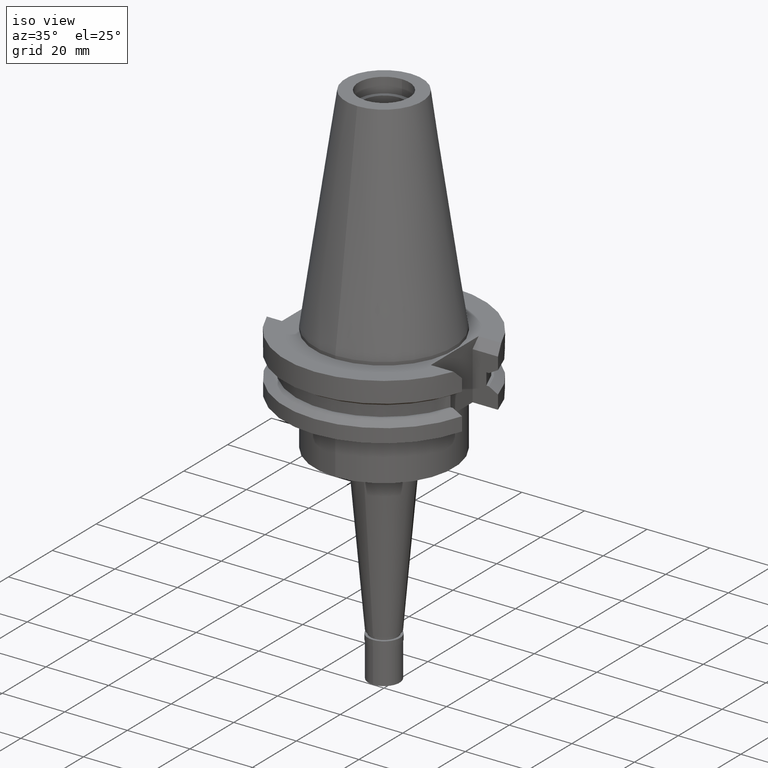
[diagram: clean part render]
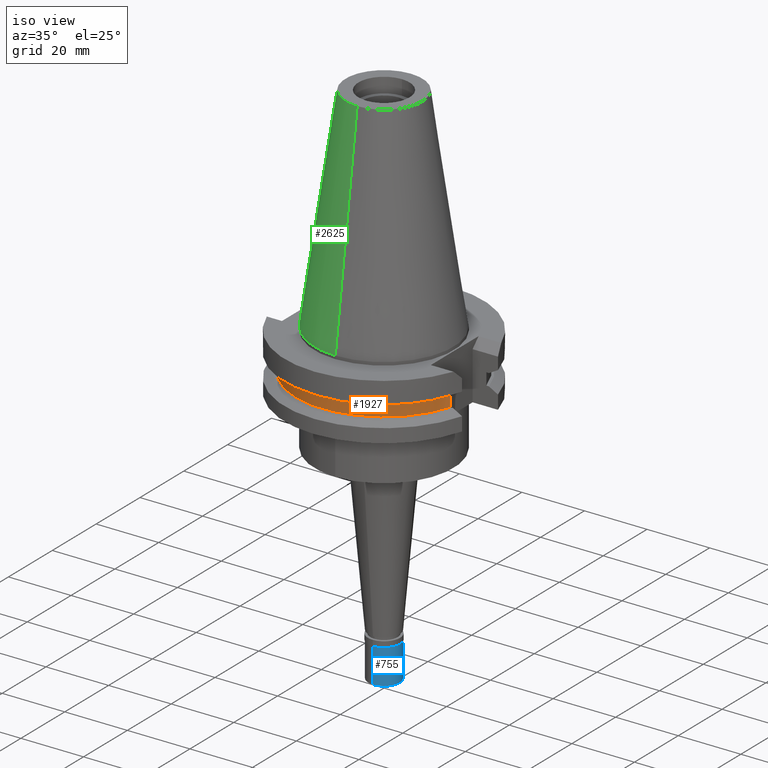
[diagram: same view with three faces highlighted in distinct colors, each labeled with its STEP entity id]
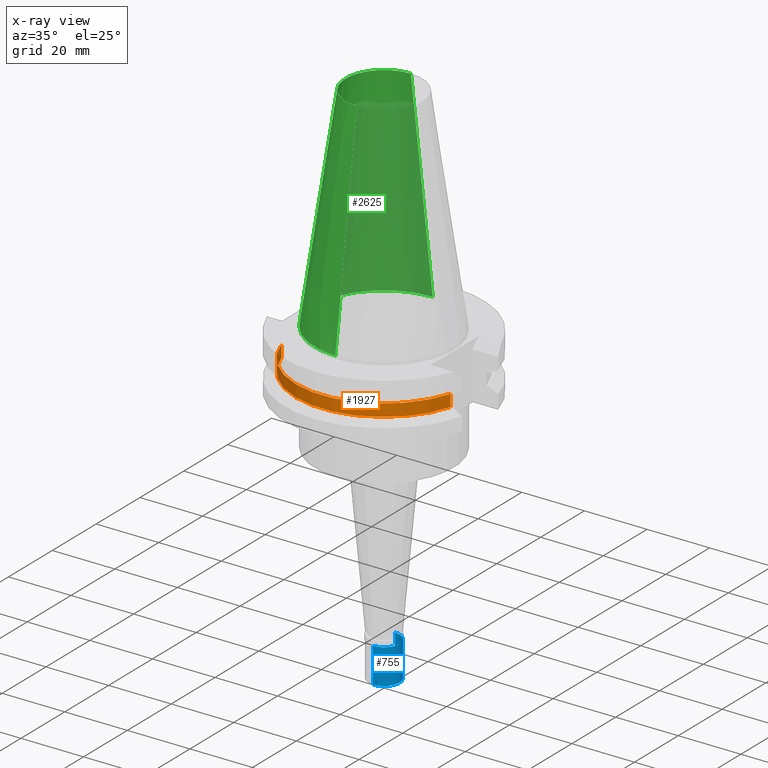
[diagram: x-ray of the same camera — body ghosted, the three highlighted faces saturated]
A machine part, iso view with three faces highlighted in distinct colors.
The next image is the same camera in x-ray (body ghosted, the three faces saturated) — at least one of them is partly hidden behind the body in this view.
Their STEP definitions:

[orange] entity #1927 — the highlighted cylindrical surface (partial cylindrical patch) has radius 28.18 mm, axis along (0, 0, -1).
#37 = CARTESIAN_POINT ( 'NONE',  ( 0.0000000000000000000, 2.162205772404999825E-14, -13.04749999999999943 ) ) ;
#134 = DIRECTION ( 'NONE',  ( 0.0000000000000000000, 0.0000000000000000000, -1.000000000000000000 ) ) ;
#163 = VECTOR ( 'NONE', #922, 1000.000000000000000 ) ;
#220 = CARTESIAN_POINT ( 'NONE',  ( -26.96361066326000255, -8.189999999999999503, -13.04749999999999943 ) ) ;
#222 = CARTESIAN_POINT ( 'NONE',  ( 0.0000000000000000000, 2.162205772404999825E-14, 76.55750000000000455 ) ) ;
#351 = CARTESIAN_POINT ( 'NONE',  ( 0.0000000000000000000, 2.162205772404999825E-14, -9.207499999999999574 ) ) ;
#378 = CIRCLE ( 'NONE', #633, 28.17999999999999616 ) ;
#452 = DIRECTION ( 'NONE',  ( 0.0000000000000000000, -1.000000000000000000, 0.0000000000000000000 ) ) ;
#462 = CARTESIAN_POINT ( 'NONE',  ( 26.96361066326000255, -8.189999999999999503, -9.207499999999999574 ) ) ;
#464 = VERTEX_POINT ( 'NONE', #220 ) ;
#519 = VERTEX_POINT ( 'NONE', #702 ) ;
#575 = DIRECTION ( 'NONE',  ( 0.0000000000000000000, 0.0000000000000000000, 1.000000000000000000 ) ) ;
#616 = EDGE_LOOP ( 'NONE', ( #3012, #1088, #2443, #2519 ) ) ;
#633 = AXIS2_PLACEMENT_3D ( 'NONE', #37, #575, #1057 ) ;
#702 = CARTESIAN_POINT ( 'NONE',  ( -26.96361066326000255, -8.189999999999999503, -9.207499999999999574 ) ) ;
#766 = CARTESIAN_POINT ( 'NONE',  ( 26.96361066326000255, -8.189999999999999503, -13.04749999999999943 ) ) ;
#768 = EDGE_CURVE ( 'NONE', #1223, #519, #2335, .T. ) ;
#922 = DIRECTION ( 'NONE',  ( 0.0000000000000000000, 0.0000000000000000000, -1.000000000000000000 ) ) ;
#955 = EDGE_CURVE ( 'NONE', #1223, #1424, #2203, .T. ) ;
#1057 = DIRECTION ( 'NONE',  ( -0.9568350128907829877, -0.2906316536550950236, 0.0000000000000000000 ) ) ;
#1088 = ORIENTED_EDGE ( 'NONE', *, *, #768, .T. ) ;
#1223 = VERTEX_POINT ( 'NONE', #1761 ) ;
#1424 = VERTEX_POINT ( 'NONE', #766 ) ;
#1565 = DIRECTION ( 'NONE',  ( 0.0000000000000000000, -1.000000000000000000, 0.0000000000000000000 ) ) ;
#1627 = EDGE_CURVE ( 'NONE', #464, #1424, #378, .T. ) ;
#1660 = DIRECTION ( 'NONE',  ( 0.0000000000000000000, 0.0000000000000000000, -1.000000000000000000 ) ) ;
#1677 = FACE_OUTER_BOUND ( 'NONE', #616, .T. ) ;
#1761 = CARTESIAN_POINT ( 'NONE',  ( 26.96361066326000255, -8.189999999999999503, -9.207499999999999574 ) ) ;
#1807 = EDGE_CURVE ( 'NONE', #464, #519, #2863, .T. ) ;
#1927 = ADVANCED_FACE ( 'NONE', ( #1677 ), #2440, .T. ) ;
#2121 = VECTOR ( 'NONE', #2154, 1000.000000000000000 ) ;
#2154 = DIRECTION ( 'NONE',  ( 0.0000000000000000000, 0.0000000000000000000, 1.000000000000000000 ) ) ;
#2203 = LINE ( 'NONE', #462, #163 ) ;
#2232 = AXIS2_PLACEMENT_3D ( 'NONE', #222, #1660, #452 ) ;
#2335 = CIRCLE ( 'NONE', #2805, 28.17999999999999972 ) ;
#2377 = CARTESIAN_POINT ( 'NONE',  ( -26.96361066326000255, -8.189999999999999503, -13.04749999999999943 ) ) ;
#2440 = CYLINDRICAL_SURFACE ( 'NONE', #2232, 28.17999999999999972 ) ;
#2443 = ORIENTED_EDGE ( 'NONE', *, *, #1807, .F. ) ;
#2519 = ORIENTED_EDGE ( 'NONE', *, *, #1627, .T. ) ;
#2805 = AXIS2_PLACEMENT_3D ( 'NONE', #351, #134, #1565 ) ;
#2863 = LINE ( 'NONE', #2377, #2121 ) ;
#3012 = ORIENTED_EDGE ( 'NONE', *, *, #955, .F. ) ;

[blue] entity #755 — the highlighted cylindrical surface (edge-blend (fillet) strip) has radius 5 mm, axis along (0, 0, 1).
#23 = DIRECTION ( 'NONE',  ( 0.0000000000000000000, 0.0000000000000000000, -1.000000000000000000 ) ) ;
#48 = AXIS2_PLACEMENT_3D ( 'NONE', #1637, #366, #1870 ) ;
#138 = DIRECTION ( 'NONE',  ( 0.0000000000000000000, 0.0000000000000000000, -1.000000000000000000 ) ) ;
#151 = AXIS2_PLACEMENT_3D ( 'NONE', #2985, #23, #1736 ) ;
#287 = EDGE_CURVE ( 'NONE', #1918, #1192, #2060, .T. ) ;
#301 = VERTEX_POINT ( 'NONE', #412 ) ;
#364 = CARTESIAN_POINT ( 'NONE',  ( 0.0000000000000000000, 0.0000000000000000000, -13.65000000000000036 ) ) ;
#366 = DIRECTION ( 'NONE',  ( 0.0000000000000000000, 0.0000000000000000000, 1.000000000000000000 ) ) ;
#369 = ORIENTED_EDGE ( 'NONE', *, *, #1515, .T. ) ;
#412 = CARTESIAN_POINT ( 'NONE',  ( 0.0000000000000000000, -5.000000000000000000, -1.800000000000000044 ) ) ;
#605 = CARTESIAN_POINT ( 'NONE',  ( 0.0000000000000000000, 5.000000000000000000, -1.800000000000000044 ) ) ;
#651 = DIRECTION ( 'NONE',  ( 0.0000000000000000000, 0.0000000000000000000, -1.000000000000000000 ) ) ;
#688 = CARTESIAN_POINT ( 'NONE',  ( 0.0000000000000000000, -5.000000000000000000, -13.00000000000000000 ) ) ;
#701 = VERTEX_POINT ( 'NONE', #889 ) ;
#743 = ORIENTED_EDGE ( 'NONE', *, *, #2339, .F. ) ;
#755 = ADVANCED_FACE ( 'NONE', ( #2812 ), #1387, .T. ) ;
#779 = AXIS2_PLACEMENT_3D ( 'NONE', #364, #2570, #2841 ) ;
#889 = CARTESIAN_POINT ( 'NONE',  ( 0.0000000000000000000, 5.000000000000000000, -1.800000000000000044 ) ) ;
#1191 = CARTESIAN_POINT ( 'NONE',  ( 0.0000000000000000000, -5.000000000000000000, -1.800000000000000044 ) ) ;
#1192 = VERTEX_POINT ( 'NONE', #1329 ) ;
#1296 = VECTOR ( 'NONE', #138, 1000.000000000000000 ) ;
#1329 = CARTESIAN_POINT ( 'NONE',  ( 0.0000000000000000000, 5.000000000000000000, -13.00000000000000000 ) ) ;
#1387 = CYLINDRICAL_SURFACE ( 'NONE', #779, 5.000000000000000000 ) ;
#1515 = EDGE_CURVE ( 'NONE', #701, #301, #2950, .T. ) ;
#1545 = ORIENTED_EDGE ( 'NONE', *, *, #3051, .T. ) ;
#1585 = EDGE_LOOP ( 'NONE', ( #369, #1545, #2576, #743 ) ) ;
#1622 = LINE ( 'NONE', #1191, #1744 ) ;
#1637 = CARTESIAN_POINT ( 'NONE',  ( 0.0000000000000000000, 0.0000000000000000000, -13.00000000000000000 ) ) ;
#1736 = DIRECTION ( 'NONE',  ( 0.0000000000000000000, 1.000000000000000000, 0.0000000000000000000 ) ) ;
#1744 = VECTOR ( 'NONE', #651, 1000.000000000000000 ) ;
#1870 = DIRECTION ( 'NONE',  ( 0.0000000000000000000, -1.000000000000000000, 0.0000000000000000000 ) ) ;
#1918 = VERTEX_POINT ( 'NONE', #688 ) ;
#2060 = CIRCLE ( 'NONE', #48, 5.000000000000000000 ) ;
#2339 = EDGE_CURVE ( 'NONE', #701, #1192, #2610, .T. ) ;
#2570 = DIRECTION ( 'NONE',  ( 0.0000000000000000000, 0.0000000000000000000, 1.000000000000000000 ) ) ;
#2576 = ORIENTED_EDGE ( 'NONE', *, *, #287, .T. ) ;
#2610 = LINE ( 'NONE', #605, #1296 ) ;
#2812 = FACE_OUTER_BOUND ( 'NONE', #1585, .T. ) ;
#2841 = DIRECTION ( 'NONE',  ( 0.0000000000000000000, 1.000000000000000000, 0.0000000000000000000 ) ) ;
#2950 = CIRCLE ( 'NONE', #151, 5.000000000000000000 ) ;
#2985 = CARTESIAN_POINT ( 'NONE',  ( 0.0000000000000000000, 0.0000000000000000000, -1.800000000000000044 ) ) ;
#3051 = EDGE_CURVE ( 'NONE', #301, #1918, #1622, .T. ) ;

[green] entity #2625 — the highlighted conical surface has half-angle 8.297 deg.
#35 = ORIENTED_EDGE ( 'NONE', *, *, #2422, .F. ) ;
#70 = DIRECTION ( 'NONE',  ( 0.0000000000000000000, -1.000000000000000000, 0.0000000000000000000 ) ) ;
#120 = CIRCLE ( 'NONE', #177, 12.27186888070000137 ) ;
#177 = AXIS2_PLACEMENT_3D ( 'NONE', #3139, #655, #1426 ) ;
#187 = VERTEX_POINT ( 'NONE', #2322 ) ;
#246 = EDGE_CURVE ( 'NONE', #2579, #3035, #2855, .T. ) ;
#358 = ORIENTED_EDGE ( 'NONE', *, *, #1137, .T. ) ;
#373 = CARTESIAN_POINT ( 'NONE',  ( 0.0000000000000000000, 12.27186888070000137, 68.25000000000000000 ) ) ;
#432 = CARTESIAN_POINT ( 'NONE',  ( 0.0000000000000000000, -12.27186888070000137, 68.25000000000000000 ) ) ;
#435 = VECTOR ( 'NONE', #1412, 1000.000000000000114 ) ;
#642 = DIRECTION ( 'NONE',  ( 0.0000000000000000000, -1.000000000000000000, 0.0000000000000000000 ) ) ;
#655 = DIRECTION ( 'NONE',  ( 0.0000000000000000000, 0.0000000000000000000, -1.000000000000000000 ) ) ;
#682 = CARTESIAN_POINT ( 'NONE',  ( 0.0000000000000000000, 22.22500000000000142, -1.847411112975999717E-13 ) ) ;
#744 = CARTESIAN_POINT ( 'NONE',  ( 0.0000000000000000000, 12.27186888070000137, 68.25000000000000000 ) ) ;
#840 = AXIS2_PLACEMENT_3D ( 'NONE', #1031, #1767, #70 ) ;
#859 = CARTESIAN_POINT ( 'NONE',  ( 0.0000000000000000000, 1.642557519355999895E-14, -3.126388037344000570E-13 ) ) ;
#1031 = CARTESIAN_POINT ( 'NONE',  ( 0.0000000000000000000, 1.642557519355999895E-14, 34.12500000000000000 ) ) ;
#1137 = EDGE_CURVE ( 'NONE', #1149, #3035, #2503, .T. ) ;
#1149 = VERTEX_POINT ( 'NONE', #373 ) ;
#1166 = CARTESIAN_POINT ( 'NONE',  ( 0.0000000000000000000, -22.22500000000000142, -1.847411112975999717E-13 ) ) ;
#1221 = FACE_OUTER_BOUND ( 'NONE', #2528, .T. ) ;
#1279 = AXIS2_PLACEMENT_3D ( 'NONE', #859, #2113, #642 ) ;
#1412 = DIRECTION ( 'NONE',  ( 0.0000000000000000000, -0.1443069799456937474, -0.9895329683941577192 ) ) ;
#1426 = DIRECTION ( 'NONE',  ( 0.0000000000000000000, -1.000000000000000000, 0.0000000000000000000 ) ) ;
#1659 = LINE ( 'NONE', #432, #435 ) ;
#1709 = CONICAL_SURFACE ( 'NONE', #840, 17.24843444035000317, 0.1448125860318199565 ) ;
#1767 = DIRECTION ( 'NONE',  ( 0.0000000000000000000, 0.0000000000000000000, -1.000000000000000000 ) ) ;
#1937 = ORIENTED_EDGE ( 'NONE', *, *, #2489, .T. ) ;
#2113 = DIRECTION ( 'NONE',  ( 0.0000000000000000000, 0.0000000000000000000, -1.000000000000000000 ) ) ;
#2252 = ORIENTED_EDGE ( 'NONE', *, *, #246, .F. ) ;
#2322 = CARTESIAN_POINT ( 'NONE',  ( 0.0000000000000000000, -12.27186888070000137, 68.25000000000000000 ) ) ;
#2422 = EDGE_CURVE ( 'NONE', #187, #2579, #1659, .T. ) ;
#2489 = EDGE_CURVE ( 'NONE', #187, #1149, #120, .T. ) ;
#2503 = LINE ( 'NONE', #744, #2697 ) ;
#2528 = EDGE_LOOP ( 'NONE', ( #2252, #35, #1937, #358 ) ) ;
#2579 = VERTEX_POINT ( 'NONE', #1166 ) ;
#2625 = ADVANCED_FACE ( 'NONE', ( #1221 ), #1709, .T. ) ;
#2697 = VECTOR ( 'NONE', #2836, 1000.000000000000114 ) ;
#2836 = DIRECTION ( 'NONE',  ( 0.0000000000000000000, 0.1443069799456937474, -0.9895329683941577192 ) ) ;
#2855 = CIRCLE ( 'NONE', #1279, 22.22500000000000142 ) ;
#3035 = VERTEX_POINT ( 'NONE', #682 ) ;
#3139 = CARTESIAN_POINT ( 'NONE',  ( 0.0000000000000000000, 1.642557519355999895E-14, 68.25000000000000000 ) ) ;